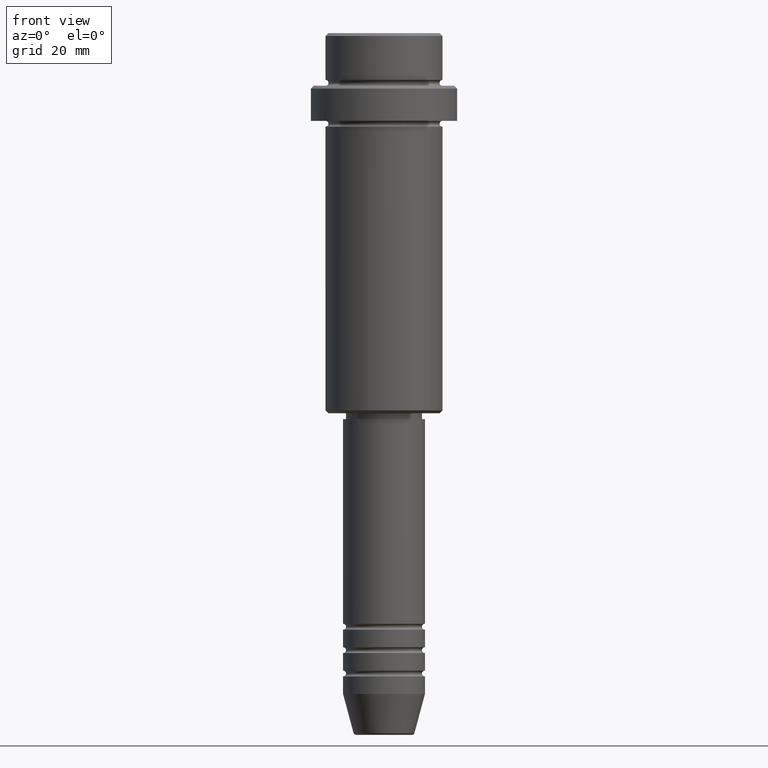
[diagram: clean part render]
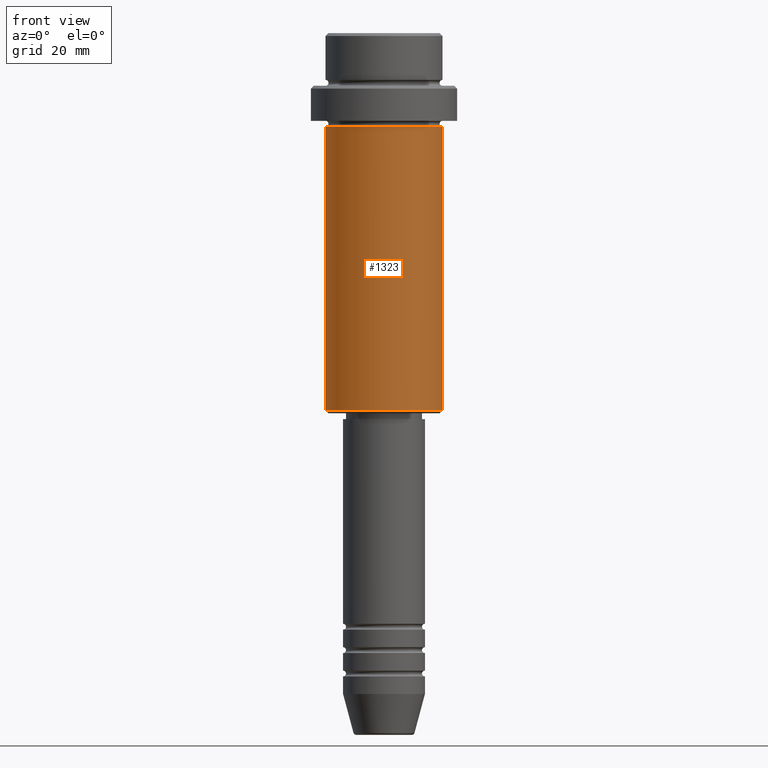
[diagram: same view with one face highlighted and labeled with its STEP entity id]
A machine part, front view. The second image highlights one B-rep face of the part: STEP entity #1323.
In plain terms, the highlighted cylindrical surface (partial cylindrical patch) has radius 10 mm, axis along (-0, -0, 1).
Its self-contained STEP definition (entity closure, byte-faithful):
#56 = CIRCLE ( 'NONE', #1386, 9.999999999999998224 ) ;
#71 = ORIENTED_EDGE ( 'NONE', *, *, #988, .F. ) ;
#123 = ORIENTED_EDGE ( 'NONE', *, *, #425, .T. ) ;
#144 = VERTEX_POINT ( 'NONE', #1063 ) ;
#203 = CARTESIAN_POINT ( 'NONE',  ( 0.000000000000000000, 0.000000000000000000, -16.00000000000000000 ) ) ;
#257 = CYLINDRICAL_SURFACE ( 'NONE', #394, 9.999999999999998224 ) ;
#300 = ORIENTED_EDGE ( 'NONE', *, *, #672, .F. ) ;
#359 = CIRCLE ( 'NONE', #1126, 9.999999999999998224 ) ;
#364 = DIRECTION ( 'NONE',  ( 1.000000000000000000, 0.000000000000000000, 0.000000000000000000 ) ) ;
#393 = DIRECTION ( 'NONE',  ( -0.000000000000000000, -0.000000000000000000, 1.000000000000000000 ) ) ;
#394 = AXIS2_PLACEMENT_3D ( 'NONE', #1224, #1217, #364 ) ;
#408 = CARTESIAN_POINT ( 'NONE',  ( 9.999999999999998224, 0.000000000000000000, 0.000000000000000000 ) ) ;
#425 = EDGE_CURVE ( 'NONE', #811, #869, #56, .T. ) ;
#545 = ORIENTED_EDGE ( 'NONE', *, *, #629, .T. ) ;
#564 = VECTOR ( 'NONE', #393, 1000.000000000000000 ) ;
#579 = CARTESIAN_POINT ( 'NONE',  ( 0.000000000000000000, 0.000000000000000000, -64.50000000000001421 ) ) ;
#587 = VERTEX_POINT ( 'NONE', #1272 ) ;
#590 = CARTESIAN_POINT ( 'NONE',  ( 9.999999999999998224, 0.000000000000000000, -64.50000000000001421 ) ) ;
#596 = DIRECTION ( 'NONE',  ( -0.000000000000000000, -0.000000000000000000, 1.000000000000000000 ) ) ;
#629 = EDGE_CURVE ( 'NONE', #869, #587, #841, .T. ) ;
#672 = EDGE_CURVE ( 'NONE', #144, #587, #359, .T. ) ;
#810 = DIRECTION ( 'NONE',  ( -1.000000000000000000, 0.000000000000000000, 0.000000000000000000 ) ) ;
#811 = VERTEX_POINT ( 'NONE', #887 ) ;
#833 = DIRECTION ( 'NONE',  ( -0.000000000000000000, -0.000000000000000000, 1.000000000000000000 ) ) ;
#841 = LINE ( 'NONE', #408, #957 ) ;
#869 = VERTEX_POINT ( 'NONE', #590 ) ;
#887 = CARTESIAN_POINT ( 'NONE',  ( -9.999999999999998224, 1.224646799147353059E-15, -64.50000000000001421 ) ) ;
#957 = VECTOR ( 'NONE', #1170, 1000.000000000000000 ) ;
#988 = EDGE_CURVE ( 'NONE', #811, #144, #1346, .T. ) ;
#1063 = CARTESIAN_POINT ( 'NONE',  ( -9.999999999999998224, 1.224646799147353059E-15, -16.00000000000000000 ) ) ;
#1126 = AXIS2_PLACEMENT_3D ( 'NONE', #203, #833, #1265 ) ;
#1170 = DIRECTION ( 'NONE',  ( -0.000000000000000000, -0.000000000000000000, 1.000000000000000000 ) ) ;
#1217 = DIRECTION ( 'NONE',  ( -0.000000000000000000, -0.000000000000000000, 1.000000000000000000 ) ) ;
#1224 = CARTESIAN_POINT ( 'NONE',  ( 0.000000000000000000, 0.000000000000000000, 0.000000000000000000 ) ) ;
#1241 = CARTESIAN_POINT ( 'NONE',  ( -9.999999999999998224, 1.224646799147353059E-15, 0.000000000000000000 ) ) ;
#1265 = DIRECTION ( 'NONE',  ( 1.000000000000000000, 0.000000000000000000, 0.000000000000000000 ) ) ;
#1272 = CARTESIAN_POINT ( 'NONE',  ( 9.999999999999998224, 0.000000000000000000, -16.00000000000000000 ) ) ;
#1313 = EDGE_LOOP ( 'NONE', ( #71, #123, #545, #300 ) ) ;
#1323 = ADVANCED_FACE ( 'NONE', ( #1326 ), #257, .T. ) ;
#1326 = FACE_OUTER_BOUND ( 'NONE', #1313, .T. ) ;
#1346 = LINE ( 'NONE', #1241, #564 ) ;
#1386 = AXIS2_PLACEMENT_3D ( 'NONE', #579, #596, #810 ) ;